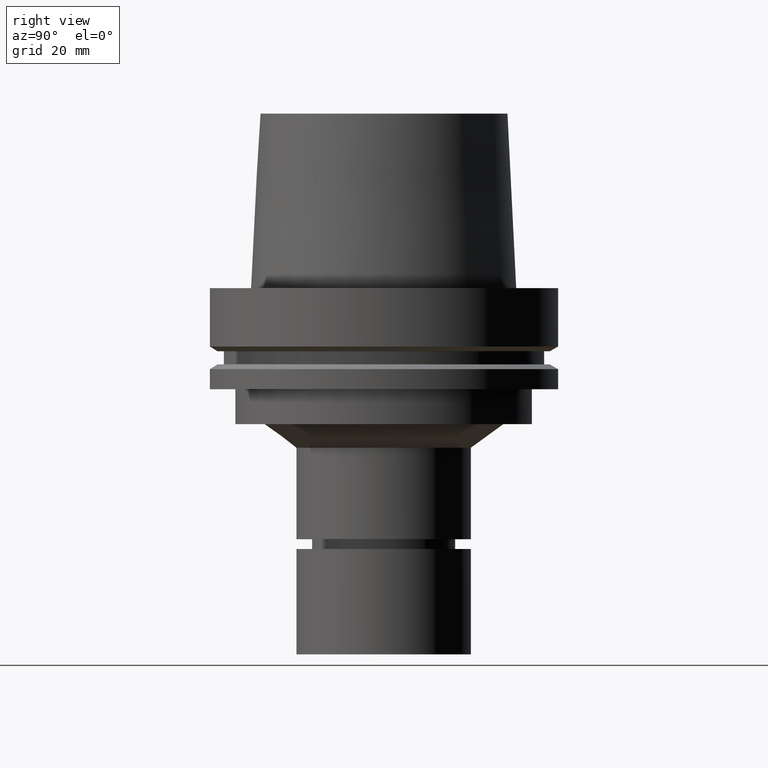
[diagram: clean part render]
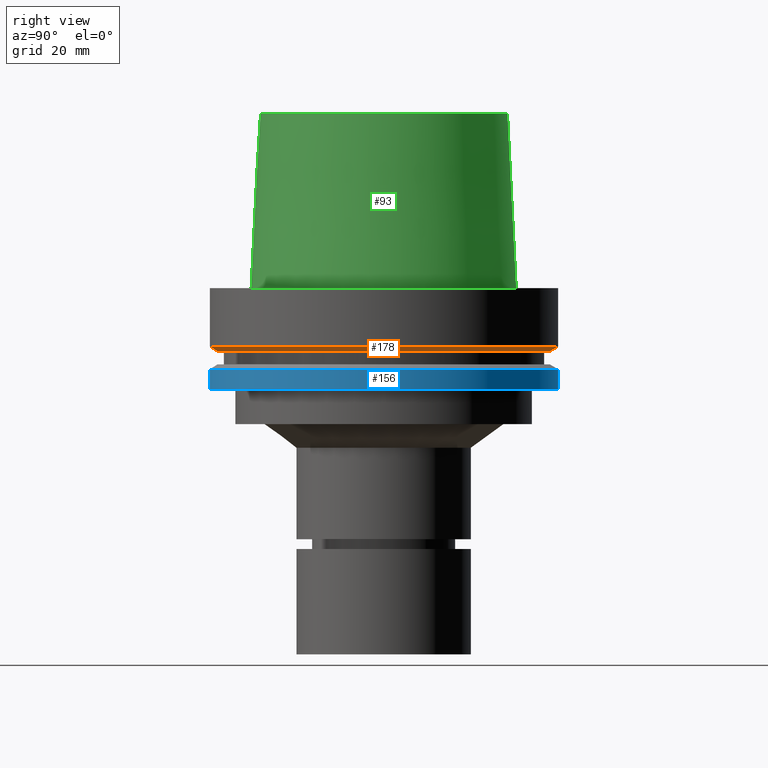
[diagram: same view with three faces highlighted in distinct colors, each labeled with its STEP entity id]
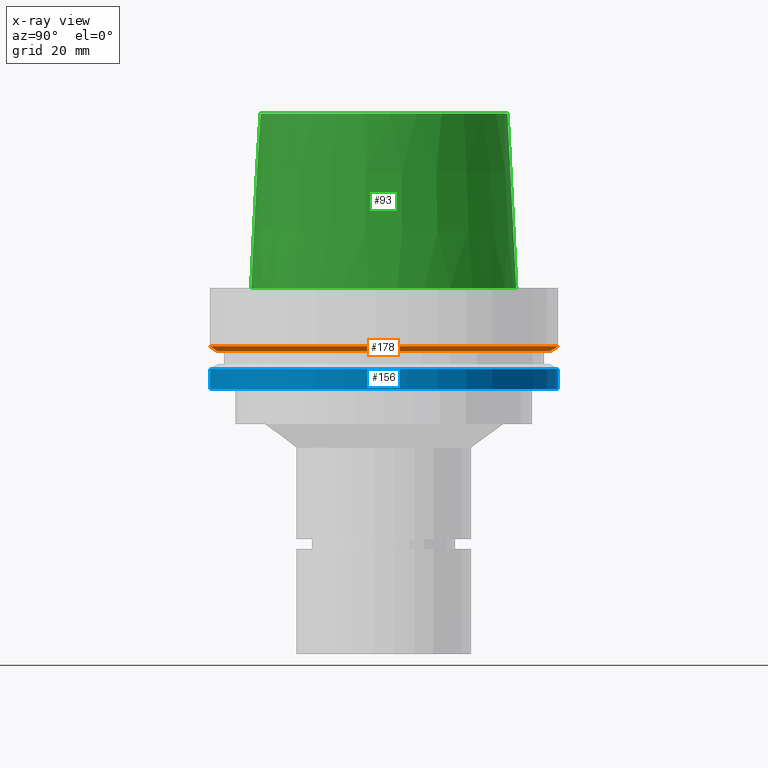
[diagram: x-ray of the same camera — body ghosted, the three highlighted faces saturated]
A machine part, right view with three faces highlighted in distinct colors.
The next image is the same camera in x-ray (body ghosted, the three faces saturated) — at least one of them is partly hidden behind the body in this view.
Their STEP definitions:

[orange] entity #178 — the highlighted conical surface has half-angle 60 deg.
#107=EDGE_CURVE('Unnamed[1]',#260,#260,#261,.T.);
#171=EDGE_CURVE('Unnamed[1]',#361,#361,#362,.T.);
#178=ADVANCED_FACE('Unnamed[1]',(#371,#372),#373,.T.);
#260=VERTEX_POINT('',#468);
#261=CIRCLE('',#469,47.62259526);
#361=VERTEX_POINT('',#594);
#362=CIRCLE('',#595,50.0);
#371=FACE_BOUND('',#607,.T.);
#372=FACE_BOUND('',#608,.T.);
#373=CONICAL_SURFACE('',#609,48.81129763,1.04719755328238);
#468=CARTESIAN_POINT('',(1.10983616172729E-015,47.62259526,-18.125));
#469=AXIS2_PLACEMENT_3D('',#693,#694,#695);
#594=CARTESIAN_POINT('',(1.0257889421431E-015,50.0,-16.75240474));
#595=AXIS2_PLACEMENT_3D('',#808,#809,#810);
#607=EDGE_LOOP('',(#818));
#608=EDGE_LOOP('',(#819));
#609=AXIS2_PLACEMENT_3D('',#820,#821,#822);
#693=CARTESIAN_POINT('',(1.10983616172729E-015,2.21967232345458E-015,-18.125));
#694=DIRECTION('',(6.12323399573676E-017,1.22464679914735E-016,-1.0));
#695=DIRECTION('',(-1.23259516440783E-032,1.0,1.22464679914735E-016));
#808=CARTESIAN_POINT('',(1.0257889421431E-015,2.05157788428619E-015,-16.75240474));
#809=DIRECTION('',(6.12323399573677E-017,1.22464679914735E-016,-1.0));
#810=DIRECTION('',(-1.23259516440783E-032,1.0,1.22464679914735E-016));
#818=ORIENTED_EDGE('',*,*,#107,.F.);
#819=ORIENTED_EDGE('',*,*,#171,.T.);
#820=CARTESIAN_POINT('',(1.06781255193519E-015,2.13562510387038E-015,-17.43870237));
#821=DIRECTION('',(-6.12323399573677E-017,-1.22464679914735E-016,1.0));
#822=DIRECTION('',(-1.23259516440783E-032,1.0,1.22464679914735E-016));

[blue] entity #156 — the highlighted cylindrical surface (bore or boss wall) has radius 50 mm, axis along (0, 0, -1).
#128=EDGE_CURVE('Unnamed[1]',#293,#293,#294,.T.);
#156=ADVANCED_FACE('Unnamed[1]',(#336,#337),#338,.T.);
#158=EDGE_CURVE('Unnamed[1]',#340,#340,#341,.T.);
#293=VERTEX_POINT('',#509);
#294=CIRCLE('',#510,50.0);
#336=FACE_BOUND('',#563,.T.);
#337=FACE_BOUND('',#564,.T.);
#338=CYLINDRICAL_SURFACE('',#565,50.0);
#340=VERTEX_POINT('',#568);
#341=CIRCLE('',#569,50.0);
#509=CARTESIAN_POINT('',(1.77573785876366E-015,50.0,-29.0));
#510=AXIS2_PLACEMENT_3D('',#731,#732,#733);
#563=EDGE_LOOP('',(#779));
#564=EDGE_LOOP('',(#780));
#565=AXIS2_PLACEMENT_3D('',#781,#782,#783);
#568=CARTESIAN_POINT('',(1.42350465615161E-015,50.0,-23.24759526));
#569=AXIS2_PLACEMENT_3D('',#784,#785,#786);
#731=CARTESIAN_POINT('',(1.77573785876366E-015,3.55147571752733E-015,-29.0));
#732=DIRECTION('',(6.12323399573677E-017,1.22464679914735E-016,-1.0));
#733=DIRECTION('',(-1.23259516440783E-032,1.0,1.22464679914735E-016));
#779=ORIENTED_EDGE('',*,*,#128,.F.);
#780=ORIENTED_EDGE('',*,*,#158,.T.);
#781=CARTESIAN_POINT('',(1.59962125745764E-015,3.19924251491527E-015,-26.12379763));
#782=DIRECTION('',(6.12323399573677E-017,1.22464679914735E-016,-1.0));
#783=DIRECTION('',(-1.23259516440783E-032,1.0,1.22464679914735E-016));
#784=CARTESIAN_POINT('',(1.42350465615161E-015,2.84700931230322E-015,-23.24759526));
#785=DIRECTION('',(6.12323399573677E-017,1.22464679914735E-016,-1.0));
#786=DIRECTION('',(-1.23259516440783E-032,1.0,1.22464679914735E-016));

[green] entity #93 — the highlighted conical surface has half-angle 2.862 deg.
#93=ADVANCED_FACE('Unnamed[1]',(#239,#240),#241,.T.);
#126=EDGE_CURVE('Unnamed[1]',#290,#290,#291,.T.);
#180=EDGE_CURVE('Unnamed[1]',#375,#375,#376,.T.);
#239=FACE_BOUND('',#442,.T.);
#240=FACE_BOUND('',#443,.T.);
#241=CONICAL_SURFACE('',#444,36.7500000007484,0.0499583956894843);
#290=VERTEX_POINT('',#505);
#291=CIRCLE('',#506,35.5000000015618);
#375=VERTEX_POINT('',#612);
#376=CIRCLE('',#613,37.9999999999349);
#442=EDGE_LOOP('',(#672));
#443=EDGE_LOOP('',(#673));
#444=AXIS2_PLACEMENT_3D('',#674,#675,#676);
#505=CARTESIAN_POINT('',(-3.06161699786838E-015,35.5000000015618,50.0));
#506=AXIS2_PLACEMENT_3D('',#728,#729,#730);
#612=CARTESIAN_POINT('',(-3.3636548776863E-032,37.9999999999349,-2.44634216324803E-015));
#613=AXIS2_PLACEMENT_3D('',#823,#824,#825);
#672=ORIENTED_EDGE('',*,*,#180,.F.);
#673=ORIENTED_EDGE('',*,*,#126,.T.);
#674=CARTESIAN_POINT('',(-1.53080849893419E-015,-3.06161699786838E-015,25.0));
#675=DIRECTION('',(6.12323399573676E-017,1.22464679914735E-016,-1.0));
#676=DIRECTION('',(-1.23259516440783E-032,1.0,1.22464679914735E-016));
#728=CARTESIAN_POINT('',(-3.06161699786838E-015,-6.12323399573676E-015,50.0));
#729=DIRECTION('',(6.12323399573677E-017,1.22464679914735E-016,-1.0));
#730=DIRECTION('',(-1.23259516440783E-032,1.0,1.22464679914735E-016));
#823=CARTESIAN_POINT('',(0.0,0.0,0.0));
#824=DIRECTION('',(6.12323399573677E-017,1.22464679914735E-016,-1.0));
#825=DIRECTION('',(-1.23259516440783E-032,1.0,1.22464679914735E-016));